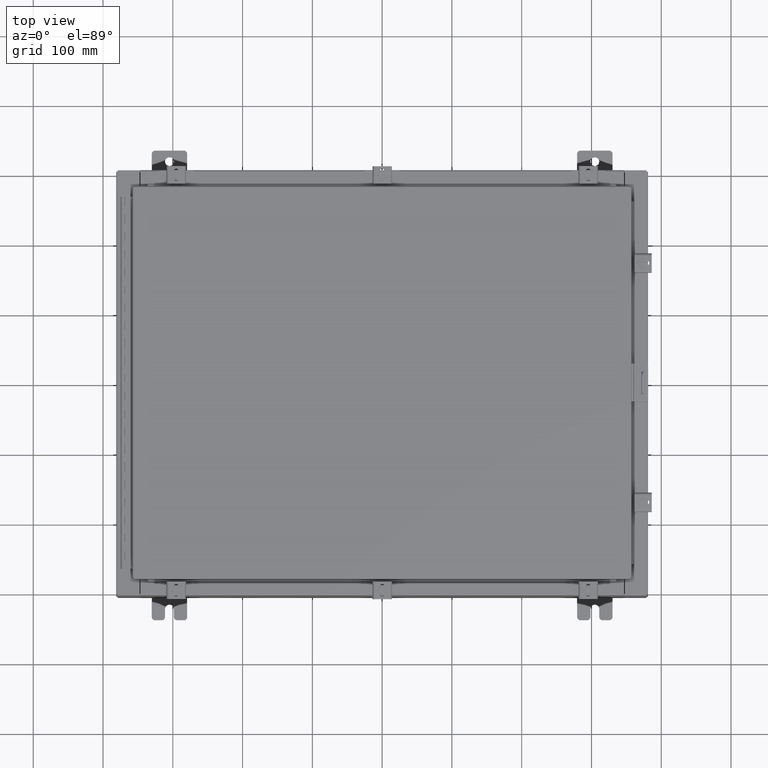
[diagram: clean part render]
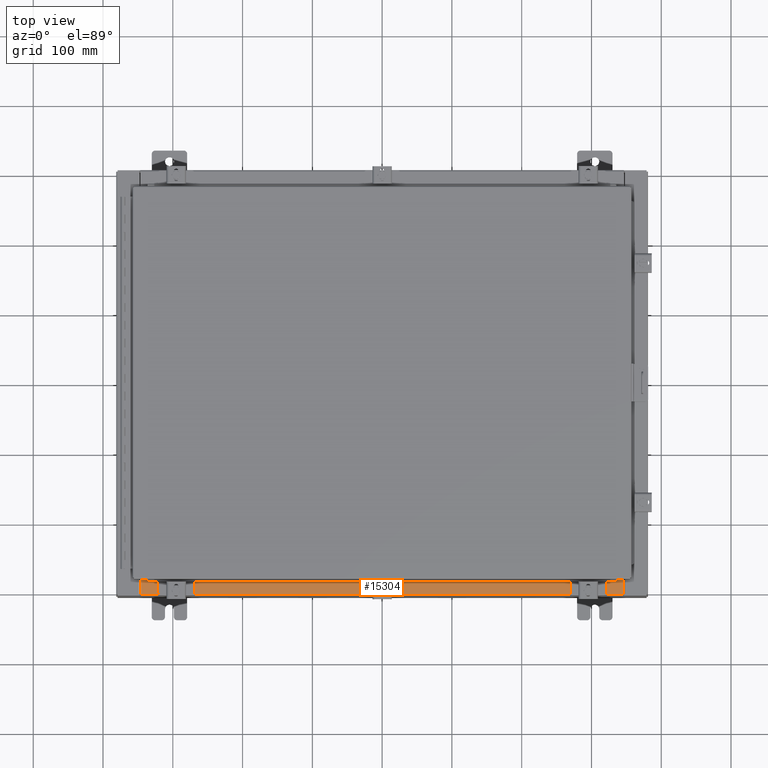
[diagram: same view with one face highlighted and labeled with its STEP entity id]
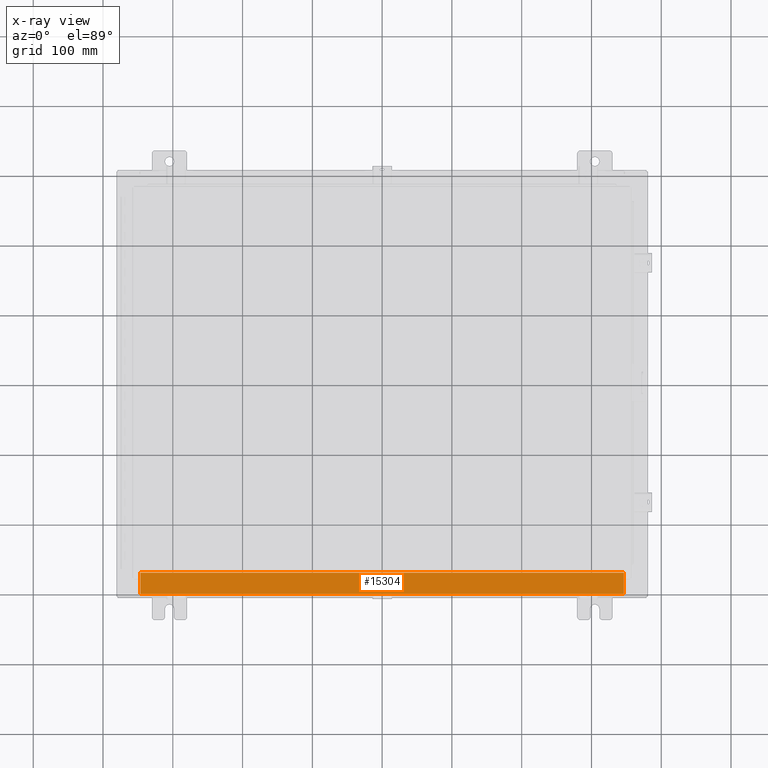
[diagram: x-ray of the same camera — body ghosted, the highlighted face saturated]
A machine part, top view. The second image highlights one B-rep face of the part: STEP entity #15304.
The next image is the same camera in x-ray: the body ghosted, the highlighted face saturated — about 0% of this face is hidden behind the body in this view.
In plain terms, the highlighted planar face has unit normal (-0, -0, 1).
Its self-contained STEP definition (entity closure, byte-faithful):
#1228 = DIRECTION ( 'NONE',  ( -1.000000000000000000, 0.0000000000000000000, 0.0000000000000000000 ) ) ;
#1603 = DIRECTION ( 'NONE',  ( -0.0000000000000000000, -1.000000000000000000, 3.566381192773190000E-015 ) ) ;
#1617 = PLANE ( 'NONE',  #15271 ) ;
#1870 = CARTESIAN_POINT ( 'NONE',  ( 13.63720000000000400, -0.08769999999999965300, 4.000000000000000000 ) ) ;
#2465 = VERTEX_POINT ( 'NONE', #14907 ) ;
#3675 = LINE ( 'NONE', #22138, #16230 ) ;
#3933 = CARTESIAN_POINT ( 'NONE',  ( 13.63720000000000400, -1.287299999999999900, 4.000000000000004400 ) ) ;
#4126 = DIRECTION ( 'NONE',  ( 0.0000000000000000000, 3.566381192773190000E-015, 1.000000000000000000 ) ) ;
#5121 = VERTEX_POINT ( 'NONE', #26550 ) ;
#5229 = LINE ( 'NONE', #13712, #31170 ) ;
#5797 = VERTEX_POINT ( 'NONE', #1870 ) ;
#7431 = VERTEX_POINT ( 'NONE', #3933 ) ;
#7773 = EDGE_CURVE ( 'NONE', #2465, #5121, #26384, .T. ) ;
#8754 = VECTOR ( 'NONE', #1603, 39.37007874015748100 ) ;
#9267 = FACE_OUTER_BOUND ( 'NONE', #12339, .T. ) ;
#9357 = ORIENTED_EDGE ( 'NONE', *, *, #32097, .F. ) ;
#9542 = LINE ( 'NONE', #21716, #8754 ) ;
#10736 = CARTESIAN_POINT ( 'NONE',  ( -13.63719999999999800, -0.07469999999999973900, 4.000000000000000000 ) ) ;
#12072 = ORIENTED_EDGE ( 'NONE', *, *, #24901, .T. ) ;
#12339 = EDGE_LOOP ( 'NONE', ( #29036, #13895, #9357, #12072 ) ) ;
#12986 = VECTOR ( 'NONE', #25806, 39.37007874015748100 ) ;
#13712 = CARTESIAN_POINT ( 'NONE',  ( 13.63720000000000400, -1.287299999999999900, 4.000000000000003600 ) ) ;
#13895 = ORIENTED_EDGE ( 'NONE', *, *, #25339, .F. ) ;
#14907 = CARTESIAN_POINT ( 'NONE',  ( -13.63719999999999800, -1.287299999999999200, 4.000000000000004400 ) ) ;
#15271 = AXIS2_PLACEMENT_3D ( 'NONE', #19055, #4126, #21737 ) ;
#15304 = ADVANCED_FACE ( 'NONE', ( #9267 ), #1617, .T. ) ;
#16230 = VECTOR ( 'NONE', #24646, 39.37007874015748100 ) ;
#19055 = CARTESIAN_POINT ( 'NONE',  ( 0.0000000000000000000, 1.425992975200418500E-014, 4.000000000000000000 ) ) ;
#21716 = CARTESIAN_POINT ( 'NONE',  ( 13.63720000000000400, -1.300299999999999800, 4.000000000000004400 ) ) ;
#21737 = DIRECTION ( 'NONE',  ( 0.0000000000000000000, -1.000000000000000000, 3.566381192773190000E-015 ) ) ;
#22138 = CARTESIAN_POINT ( 'NONE',  ( -1.756834753793995900E-018, -0.08770000000000000000, 4.000000000000000900 ) ) ;
#24646 = DIRECTION ( 'NONE',  ( -1.000000000000000000, 2.003232330437526000E-017, -7.144290108027600900E-032 ) ) ;
#24901 = EDGE_CURVE ( 'NONE', #5797, #5121, #3675, .T. ) ;
#25339 = EDGE_CURVE ( 'NONE', #7431, #2465, #5229, .T. ) ;
#25806 = DIRECTION ( 'NONE',  ( -0.0000000000000000000, 1.000000000000000000, -3.566381192773190000E-015 ) ) ;
#26384 = LINE ( 'NONE', #10736, #12986 ) ;
#26550 = CARTESIAN_POINT ( 'NONE',  ( -13.63719999999999800, -0.08770000000000000000, 4.000000000000000000 ) ) ;
#29036 = ORIENTED_EDGE ( 'NONE', *, *, #7773, .F. ) ;
#31170 = VECTOR ( 'NONE', #1228, 39.37007874015748100 ) ;
#32097 = EDGE_CURVE ( 'NONE', #5797, #7431, #9542, .T. ) ;